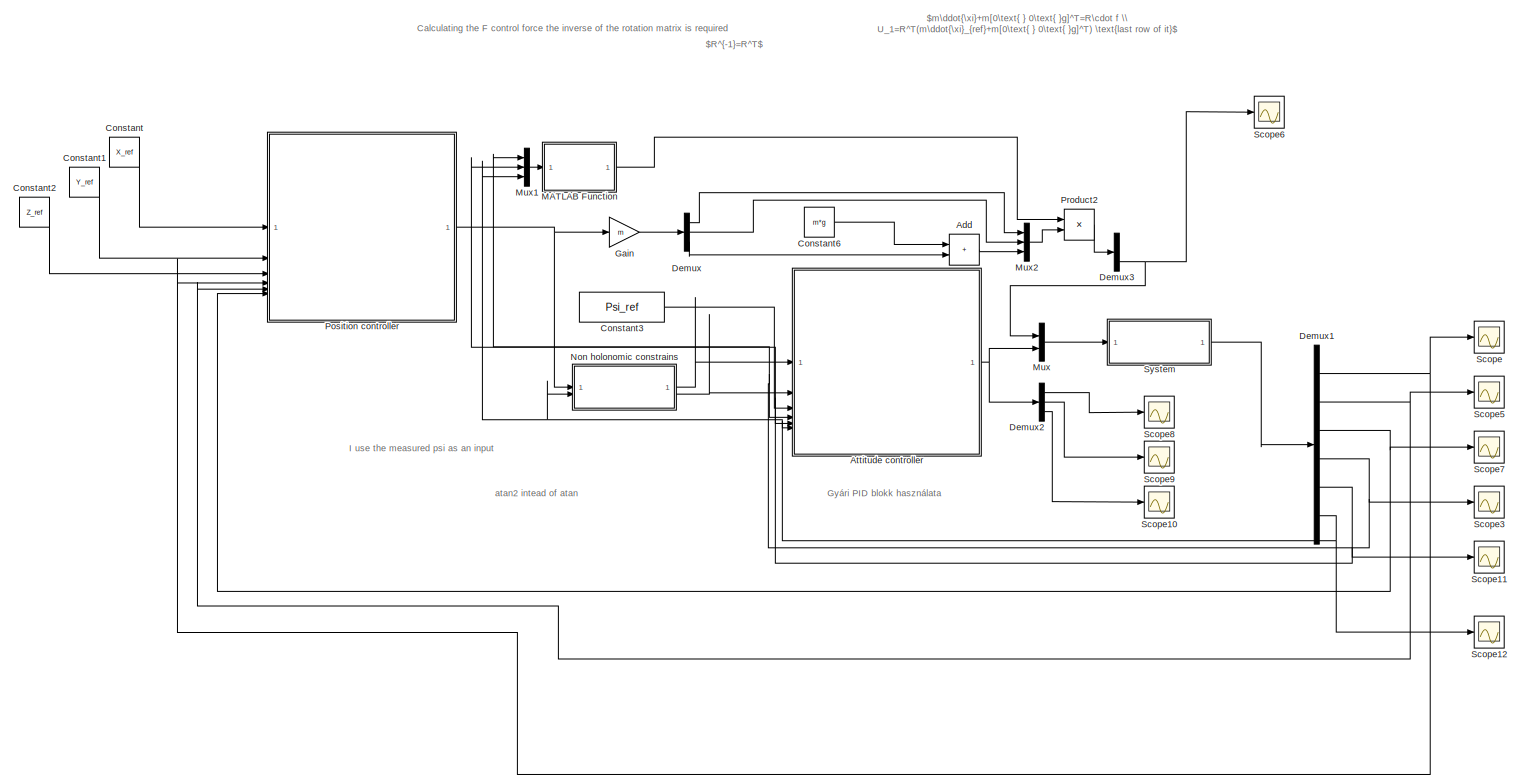
[diagram: root canvas - part 1/1, most of the canvas]
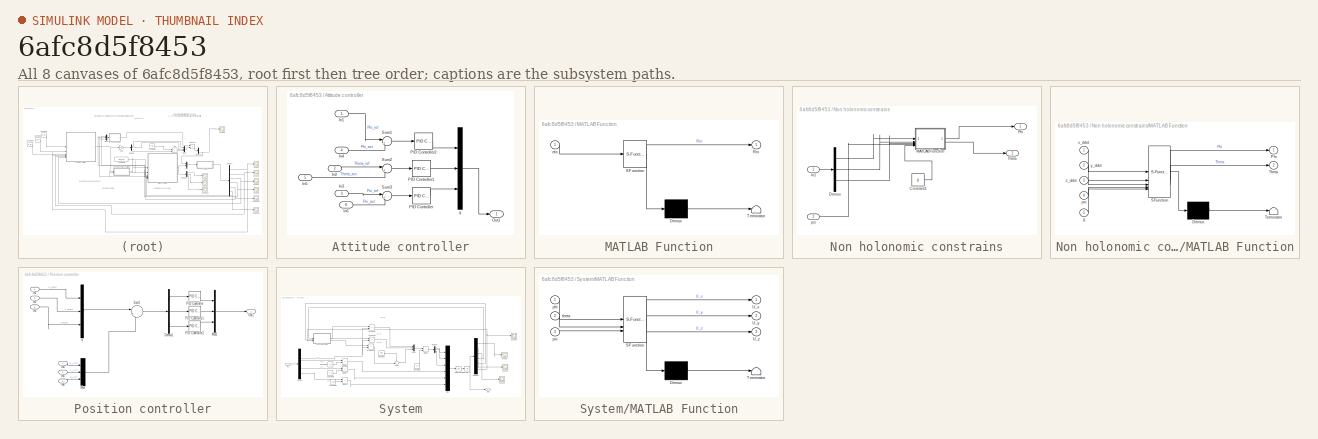
[diagram: thumbnail index - all 8 canvases of the model, root first then tree order]
MODEL slx_6afc8d5f8453
KIND model
CONFIG AbsTol = auto
CONFIG EnableMultiTasking = off
CONFIG FixedStep = auto
CONFIG MaxStep = auto
CONFIG MinStep = auto
CONFIG RelTol = 1e-3
CONFIG SampleTimeConstraint = Unconstrained
CONFIG SolverName = VariableStepAuto
CONFIG StartTime = 0.0
CONFIG StopTime = 50
BLOCK [Sum] Add
  IconShape = rectangular
BLOCK [SubSystem] Attitude controller
BLOCK [Inport] Attitude controller/In1
BLOCK [Inport] Attitude controller/In2
  Port = 2
BLOCK [Inport] Attitude controller/In3
  Port = 3
BLOCK [Inport] Attitude controller/In4
  Port = 4
BLOCK [Inport] Attitude controller/In5
  Port = 5
BLOCK [Inport] Attitude controller/In6
  Port = 6
BLOCK [Outport] Attitude controller/Out1
BLOCK [Reference] Attitude controller/PID Controller  REF=slpidlib/PID Controller
  SourceBlock = slpidlib/PID Controller
  SourceType = PID 1dof
BLOCK [Reference] Attitude controller/PID Controller1  REF=slpidlib/PID Controller
  SourceBlock = slpidlib/PID Controller
  SourceType = PID 1dof
BLOCK [Reference] Attitude controller/PID Controller2  REF=slpidlib/PID Controller
  SourceBlock = slpidlib/PID Controller
  SourceType = PID 1dof
BLOCK [Sum] Attitude controller/Sum1
  Inputs = |+-
BLOCK [Sum] Attitude controller/Sum2
  Inputs = |+-
BLOCK [Sum] Attitude controller/Sum3
  Inputs = |+-
BLOCK [Mux] Attitude controller/q
  DisplayOption = bar
  Inputs = 3
BLOCK [Constant] Constant
  Value = X_ref
BLOCK [Constant] Constant1
  Value = Y_ref
BLOCK [Constant] Constant2
  Value = Z_ref
BLOCK [Constant] Constant3
  Value = Psi_ref
BLOCK [Constant] Constant6
  Value = m*g
BLOCK [Demux] Demux
  Outputs = 3
BLOCK [Demux] Demux1
  Outputs = 6
BLOCK [Demux] Demux2
  Outputs = 3
BLOCK [Demux] Demux3
  Outputs = 3
BLOCK [Gain] Gain
  Gain = m
BLOCK [SubSystem] MATLAB Function
  ErrorFcn = Stateflow.Translate.translate
  PermitHierarchicalResolution = ExplicitOnly
  SFBlockType = MATLAB Function
  TreatAsAtomicUnit = on
BLOCK [Demux] MATLAB Function/ Demux 
  Outputs = 1
BLOCK [S-Function] MATLAB Function/ SFunction 
  EnableBusSupport = on
  FunctionName = sf_sfun
  PortCounts = [1 2]
  SFcnIsStateOwnerBlock = off
  SFunctionDeploymentMode = off
  Tag = Stateflow S-Function 4
BLOCK [Terminator] MATLAB Function/ Terminator 
BLOCK [Outport] MATLAB Function/Rm
BLOCK [Inport] MATLAB Function/eta
BLOCK [Mux] Mux
  DisplayOption = bar
  Inputs = 2
BLOCK [Mux] Mux1
  DisplayOption = bar
  Inputs = 3
BLOCK [Mux] Mux2
  DisplayOption = bar
  Inputs = 3
BLOCK [SubSystem] Non holonomic constrains
BLOCK [Constant] Non holonomic constrains/Constant1
  Value = g
BLOCK [Demux] Non holonomic constrains/Demux
  Outputs = 3
BLOCK [Inport] Non holonomic constrains/In1
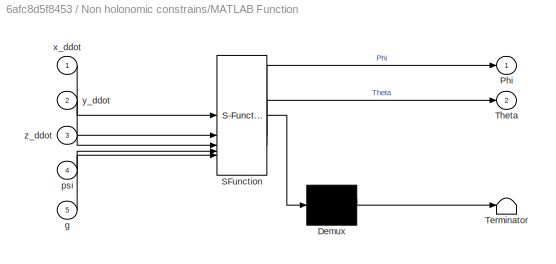
BLOCK [SubSystem] Non holonomic constrains/MATLAB Function
  ErrorFcn = Stateflow.Translate.translate
  PermitHierarchicalResolution = ExplicitOnly
  SFBlockType = MATLAB Function
  TreatAsAtomicUnit = on
BLOCK [Demux] Non holonomic constrains/MATLAB Function/ Demux 
  Outputs = 1
BLOCK [S-Function] Non holonomic constrains/MATLAB Function/ SFunction 
  EnableBusSupport = on
  FunctionName = sf_sfun
  PortCounts = [5 3]
  SFcnIsStateOwnerBlock = off
  SFunctionDeploymentMode = off
  Tag = Stateflow S-Function 1
BLOCK [Terminator] Non holonomic constrains/MATLAB Function/ Terminator 
BLOCK [Outport] Non holonomic constrains/MATLAB Function/Phi
BLOCK [Outport] Non holonomic constrains/MATLAB Function/Theta
  Port = 2
BLOCK [Inport] Non holonomic constrains/MATLAB Function/g
  Port = 5
BLOCK [Inport] Non holonomic constrains/MATLAB Function/psi
  Port = 4
BLOCK [Inport] Non holonomic constrains/MATLAB Function/x_ddot
BLOCK [Inport] Non holonomic constrains/MATLAB Function/y_ddot
  Port = 2
BLOCK [Inport] Non holonomic constrains/MATLAB Function/z_ddot
  Port = 3
BLOCK [Outport] Non holonomic constrains/Phi
BLOCK [Outport] Non holonomic constrains/Theta
  Port = 2
BLOCK [Inport] Non holonomic constrains/psi
  Port = 2
BLOCK [SubSystem] Position controller
BLOCK [Demux] Position controller/Demux1
  Outputs = 3
BLOCK [Inport] Position controller/In1
BLOCK [Inport] Position controller/In2
  Port = 2
BLOCK [Inport] Position controller/In3
  Port = 3
BLOCK [Inport] Position controller/In4
  Port = 4
BLOCK [Inport] Position controller/In5
  Port = 5
BLOCK [Inport] Position controller/In6
  Port = 6
BLOCK [Mux] Position controller/Mux
  DisplayOption = bar
  Inputs = 3
BLOCK [Mux] Position controller/Mux1
  DisplayOption = bar
  Inputs = 3
BLOCK [Outport] Position controller/Out1
BLOCK [Reference] Position controller/PID Controller  REF=slpidlib/PID Controller
  SourceBlock = slpidlib/PID Controller
  SourceType = PID 1dof
BLOCK [Reference] Position controller/PID Controller1  REF=slpidlib/PID Controller
  SourceBlock = slpidlib/PID Controller
  SourceType = PID 1dof
BLOCK [Reference] Position controller/PID Controller2  REF=slpidlib/PID Controller
  SourceBlock = slpidlib/PID Controller
  SourceType = PID 1dof
BLOCK [Sum] Position controller/Sum1
  Inputs = |+-
BLOCK [Mux] Position controller/q
  DisplayOption = bar
  Inputs = 3
BLOCK [Product] Product2
  Multiplication = Matrix(*)
BLOCK [Scope] Scope
  Floating = off
  NumInputPorts = 1
  ScopeSpecificationString = Simulink.scopes.TimeScopeBlockCfg('CurrentConfiguration', extmgr.ConfigurationSet(extmgr.Configuration('Core','General UI',true,'FigureColor',[0 0 0]),extmgr.Configuration('Core','Source UI',true),extmgr.Configuration('Sources','WiredSimulink',true),extmgr.Configuration('Visuals','Time Domain',true,'SerializedDisplays',{struct('MinYLimReal','-0.125','MaxYLimReal','1.125','YLabelReal','X [m]','MinY...<+1433ch>
BLOCK [Scope] Scope10
  Floating = off
  NumInputPorts = 1
  ScopeSpecificationString = Simulink.scopes.TimeScopeBlockCfg('CurrentConfiguration', extmgr.ConfigurationSet(extmgr.Configuration('Core','General UI',true),extmgr.Configuration('Core','Source UI',true),extmgr.Configuration('Sources','WiredSimulink',true,'DataLoggingVariableName','ScopeData13'),extmgr.Configuration('Visuals','Time Domain',true,'SerializedDisplays',{struct('MinYLimReal','-2.79749','MaxYLimReal','6.71037','YLa...<+1465ch>
BLOCK [Scope] Scope11
  Floating = off
  NumInputPorts = 1
  ScopeSpecificationString = Simulink.scopes.TimeScopeBlockCfg('CurrentConfiguration', extmgr.ConfigurationSet(extmgr.Configuration('Core','General UI',true),extmgr.Configuration('Core','Source UI',true),extmgr.Configuration('Sources','WiredSimulink',true,'DataLoggingVariableName','ScopeData1'),extmgr.Configuration('Visuals','Time Domain',true,'SerializedDisplays',{struct('MinYLimReal','-3.63749','MaxYLimReal','1.50051','YLab...<+1442ch>
BLOCK [Scope] Scope12
  Floating = off
  NumInputPorts = 1
  ScopeSpecificationString = Simulink.scopes.TimeScopeBlockCfg('CurrentConfiguration', extmgr.ConfigurationSet(extmgr.Configuration('Core','General UI',true),extmgr.Configuration('Core','Source UI',true),extmgr.Configuration('Sources','WiredSimulink',true,'DataLoggingVariableName','ScopeData2'),extmgr.Configuration('Visuals','Time Domain',true,'SerializedDisplays',{struct('MinYLimReal','-0.12341','MaxYLimReal','1.11073','YLab...<+1377ch>
BLOCK [Scope] Scope3
  Floating = off
  NumInputPorts = 1
  ScopeSpecificationString = Simulink.scopes.TimeScopeBlockCfg('CurrentConfiguration', extmgr.ConfigurationSet(extmgr.Configuration('Core','General UI',true),extmgr.Configuration('Core','Source UI',true),extmgr.Configuration('Sources','WiredSimulink',true,'DataLoggingVariableName','ScopeData1'),extmgr.Configuration('Visuals','Time Domain',true,'SerializedDisplays',{struct('MinYLimReal','-2.02473','MaxYLimReal','2.46756','YLab...<+1494ch>
BLOCK [Scope] Scope5
  Floating = off
  NumInputPorts = 1
  ScopeSpecificationString = Simulink.scopes.TimeScopeBlockCfg('CurrentConfiguration', extmgr.ConfigurationSet(extmgr.Configuration('Core','General UI',true),extmgr.Configuration('Core','Source UI',true),extmgr.Configuration('Sources','WiredSimulink',true,'DataLoggingVariableName','ScopeData8'),extmgr.Configuration('Visuals','Time Domain',true,'SerializedDisplays',{struct('MinYLimReal','-1.18697','MaxYLimReal','0.13189','YLab...<+1487ch>
BLOCK [Scope] Scope6
  Floating = off
  NumInputPorts = 1
  ScopeSpecificationString = Simulink.scopes.TimeScopeBlockCfg('CurrentConfiguration', extmgr.ConfigurationSet(extmgr.Configuration('Core','General UI',true),extmgr.Configuration('Core','Source UI',true),extmgr.Configuration('Sources','WiredSimulink',true,'DataLoggingVariableName','ScopeData9'),extmgr.Configuration('Visuals','Time Domain',true,'SerializedDisplays',{struct('MinYLimReal','9.894','MaxYLimReal','29.894','YLabelRe...<+1450ch>
BLOCK [Scope] Scope7
  Floating = off
  NumInputPorts = 1
  ScopeSpecificationString = Simulink.scopes.TimeScopeBlockCfg('CurrentConfiguration', extmgr.ConfigurationSet(extmgr.Configuration('Core','General UI',true),extmgr.Configuration('Core','Source UI',true),extmgr.Configuration('Sources','WiredSimulink',true,'DataLoggingVariableName','ScopeData10'),extmgr.Configuration('Visuals','Time Domain',true,'SerializedDisplays',{struct('MinYLimReal','-0.71452','MaxYLimReal','6.43071','YLa...<+1462ch>
BLOCK [Scope] Scope8
  Floating = off
  NumInputPorts = 1
  ScopeSpecificationString = Simulink.scopes.TimeScopeBlockCfg('CurrentConfiguration', extmgr.ConfigurationSet(extmgr.Configuration('Core','General UI',true),extmgr.Configuration('Core','Source UI',true),extmgr.Configuration('Sources','WiredSimulink',true,'DataLoggingVariableName','ScopeData11'),extmgr.Configuration('Visuals','Time Domain',true,'SerializedDisplays',{struct('MinYLimReal','-0.00112','MaxYLimReal','0.00121','YLa...<+1465ch>
BLOCK [Scope] Scope9
  Floating = off
  NumInputPorts = 1
  ScopeSpecificationString = Simulink.scopes.TimeScopeBlockCfg('CurrentConfiguration', extmgr.ConfigurationSet(extmgr.Configuration('Core','General UI',true),extmgr.Configuration('Core','Source UI',true),extmgr.Configuration('Sources','WiredSimulink',true,'DataLoggingVariableName','ScopeData12'),extmgr.Configuration('Visuals','Time Domain',true,'SerializedDisplays',{struct('MinYLimReal','-2.3403','MaxYLimReal','2.14695','YLab...<+1461ch>
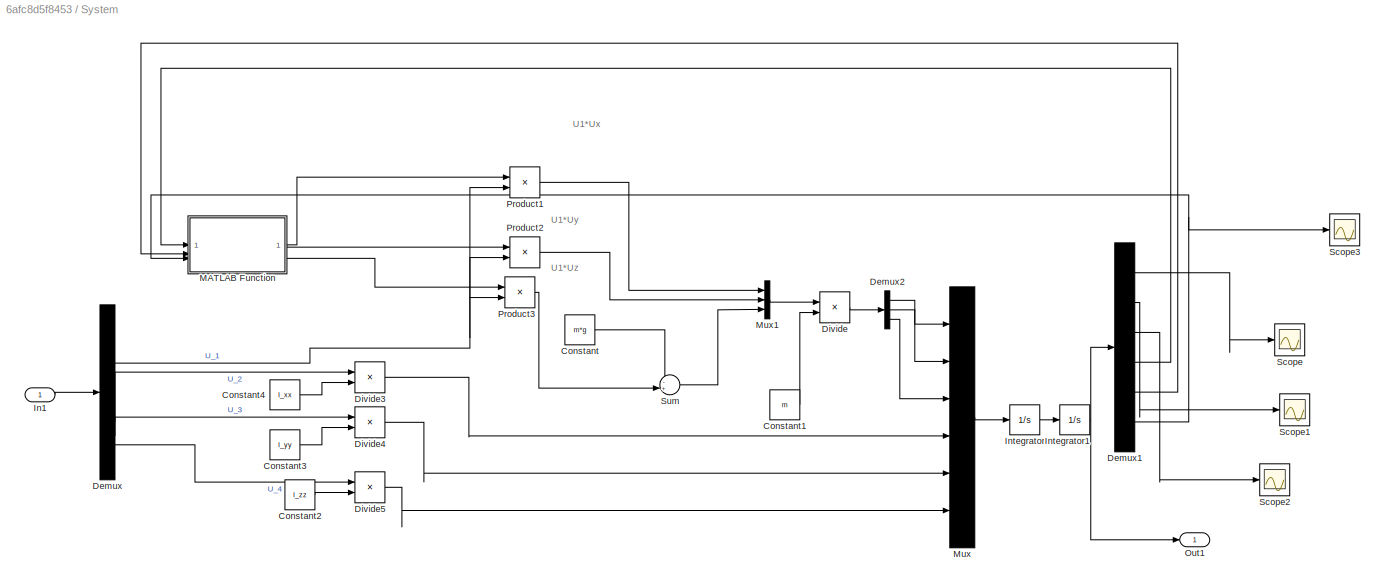
BLOCK [SubSystem] System
BLOCK [Constant] System/Constant
  Value = m*g
BLOCK [Constant] System/Constant1
  Value = m
BLOCK [Constant] System/Constant2
  Value = I_zz
BLOCK [Constant] System/Constant3
  Value = I_yy
BLOCK [Constant] System/Constant4
  Value = I_xx
BLOCK [Demux] System/Demux
BLOCK [Demux] System/Demux1
  Outputs = 6
BLOCK [Demux] System/Demux2
  Outputs = 3
BLOCK [Product] System/Divide
  Inputs = */
BLOCK [Product] System/Divide3
  Inputs = */
BLOCK [Product] System/Divide4
  Inputs = */
BLOCK [Product] System/Divide5
  Inputs = */
BLOCK [Inport] System/In1
BLOCK [Integrator] System/Integrator
BLOCK [Integrator] System/Integrator1
BLOCK [SubSystem] System/MATLAB Function
  ErrorFcn = Stateflow.Translate.translate
  PermitHierarchicalResolution = ExplicitOnly
  SFBlockType = MATLAB Function
  TreatAsAtomicUnit = on
BLOCK [Demux] System/MATLAB Function/ Demux 
  Outputs = 1
BLOCK [S-Function] System/MATLAB Function/ SFunction 
  EnableBusSupport = on
  FunctionName = sf_sfun
  PortCounts = [3 4]
  SFcnIsStateOwnerBlock = off
  SFunctionDeploymentMode = off
  Tag = Stateflow S-Function 2
BLOCK [Terminator] System/MATLAB Function/ Terminator 
BLOCK [Outport] System/MATLAB Function/U_x
BLOCK [Outport] System/MATLAB Function/U_y
  Port = 2
BLOCK [Outport] System/MATLAB Function/U_z
  Port = 3
BLOCK [Inport] System/MATLAB Function/phi
BLOCK [Inport] System/MATLAB Function/psi
  Port = 3
BLOCK [Inport] System/MATLAB Function/theta
  Port = 2
BLOCK [Mux] System/Mux
  DisplayOption = bar
  Inputs = 6
BLOCK [Mux] System/Mux1
  DisplayOption = bar
  Inputs = 3
BLOCK [Outport] System/Out1
BLOCK [Product] System/Product1
BLOCK [Product] System/Product2
BLOCK [Product] System/Product3
BLOCK [Scope] System/Scope
  Floating = off
  NumInputPorts = 1
  ScopeSpecificationString = Simulink.scopes.TimeScopeBlockCfg('CurrentConfiguration', extmgr.ConfigurationSet(extmgr.Configuration('Core','General UI',true),extmgr.Configuration('Core','Source UI',true),extmgr.Configuration('Sources','WiredSimulink',true,'DataLoggingVariableName','ScopeData14'),extmgr.Configuration('Visuals','Time Domain',true,'SerializedDisplays',{struct('MinYLimReal','-30088972.53627','MaxYLimReal','187776...<+1468ch>
BLOCK [Scope] System/Scope1
  Floating = off
  NumInputPorts = 1
  ScopeSpecificationString = Simulink.scopes.TimeScopeBlockCfg('CurrentConfiguration', extmgr.ConfigurationSet(extmgr.Configuration('Core','General UI',true),extmgr.Configuration('Core','Source UI',true),extmgr.Configuration('Sources','WiredSimulink',true,'DataLoggingVariableName','ScopeData15'),extmgr.Configuration('Visuals','Time Domain',true,'SerializedDisplays',{struct('MinYLimReal','-223164972.78221','MaxYLimReal','20084...<+1434ch>
BLOCK [Scope] System/Scope2
  Floating = off
  NumInputPorts = 1
  ScopeSpecificationString = Simulink.scopes.TimeScopeBlockCfg('CurrentConfiguration', extmgr.ConfigurationSet(extmgr.Configuration('Core','General UI',true),extmgr.Configuration('Core','Source UI',true),extmgr.Configuration('Sources','WiredSimulink',true,'DataLoggingVariableName','ScopeData16'),extmgr.Configuration('Visuals','Time Domain',true,'SerializedDisplays',{struct('MinYLimReal','-0.37859','MaxYLimReal','3.40732','YLa...<+1368ch>
BLOCK [Scope] System/Scope3
  Floating = off
  NumInputPorts = 1
  ScopeSpecificationString = Simulink.scopes.TimeScopeBlockCfg('CurrentConfiguration', extmgr.ConfigurationSet(extmgr.Configuration('Core','General UI',true),extmgr.Configuration('Core','Source UI',true),extmgr.Configuration('Sources','WiredSimulink',true,'DataLoggingVariableName','ScopeData6'),extmgr.Configuration('Visuals','Time Domain',true,'SerializedDisplays',{struct('MinYLimReal','-1.00000','MaxYLimReal','1.00000','YLab...<+1413ch>
BLOCK [Sum] System/Sum
  Inputs = -+|
ANNOTATION (root): Gyári PID blokk használata
ANNOTATION (root): $R^{-1}=R^T$
ANNOTATION (root): $m\ddot{\xi}+m[0\text{ } 0\text{ }g]^T=R\cdot f \\ U_1=R^T(m\ddot{\xi}_{ref}+m[0\text{ } 0\text{ }g]^T) \text{last row of it}$
ANNOTATION (root): Calculating the F control force the inverse of the rotation matrix is required
ANNOTATION (root): I use the measured psi as an input
ANNOTATION (root): atan2 intead of atan
ANNOTATION System: U1*Ux
ANNOTATION System: U1*Uy
ANNOTATION System: U1*Uz
LINE Add:1 -> Mux2:3
LINE Attitude controller/In1:1 -> Attitude controller/Sum1:1
LINE Attitude controller/In2:1 -> Attitude controller/Sum2:1
LINE Attitude controller/In3:1 -> Attitude controller/Sum3:1
LINE Attitude controller/In4:1 -> Attitude controller/Sum1:2
LINE Attitude controller/In5:1 -> Attitude controller/Sum2:2
LINE Attitude controller/In6:1 -> Attitude controller/Sum3:2
LINE Attitude controller/PID Controller1:1 -> Attitude controller/q:2
LINE Attitude controller/PID Controller2:1 -> Attitude controller/q:1
LINE Attitude controller/PID Controller:1 -> Attitude controller/q:3
LINE Attitude controller/Sum1:1 -> Attitude controller/PID Controller2:1
LINE Attitude controller/Sum2:1 -> Attitude controller/PID Controller1:1
LINE Attitude controller/Sum3:1 -> Attitude controller/PID Controller:1
LINE Attitude controller/q:1 -> Attitude controller/Out1:1
NET Attitude controller:1 -> Demux2:1, Mux:2
LINE Constant1:1 -> Position controller:2
LINE Constant2:1 -> Position controller:3
LINE Constant3:1 -> Attitude controller:3
LINE Constant6:1 -> Add:1
LINE Constant:1 -> Position controller:1
NET Demux1:1 -> Position controller:4, Scope:1
NET Demux1:2 -> Position controller:5, Scope5:1
NET Demux1:3 -> Position controller:6, Scope7:1
NET Demux1:4 -> Attitude controller:4, Mux1:1, Scope3:1
NET Demux1:5 -> Attitude controller:5, Mux1:2, Scope11:1
NET Demux1:6 -> Attitude controller:6, Mux1:3, Non holonomic constrains:2, Scope12:1
LINE Demux2:1 -> Scope8:1
LINE Demux2:2 -> Scope9:1
LINE Demux2:3 -> Scope10:1
NET Demux3:3 -> Mux:1, Scope6:1
LINE Demux:1 -> Mux2:1
LINE Demux:2 -> Mux2:2
LINE Demux:3 -> Add:2
LINE Gain:1 -> Demux:1
LINE MATLAB Function:1 -> Product2:1
LINE Mux1:1 -> MATLAB Function:1
LINE Mux2:1 -> Product2:2
LINE Mux:1 -> System:1
LINE Non holonomic constrains/Constant1:1 -> Non holonomic constrains/MATLAB Function:5
LINE Non holonomic constrains/Demux:1 -> Non holonomic constrains/MATLAB Function:1
LINE Non holonomic constrains/Demux:2 -> Non holonomic constrains/MATLAB Function:2
LINE Non holonomic constrains/Demux:3 -> Non holonomic constrains/MATLAB Function:3
LINE Non holonomic constrains/In1:1 -> Non holonomic constrains/Demux:1
LINE Non holonomic constrains/MATLAB Function:1 -> Non holonomic constrains/Phi:1
LINE Non holonomic constrains/MATLAB Function:2 -> Non holonomic constrains/Theta:1
LINE Non holonomic constrains/psi:1 -> Non holonomic constrains/MATLAB Function:4
LINE Non holonomic constrains:1 -> Attitude controller:1
LINE Non holonomic constrains:2 -> Attitude controller:2
LINE Position controller/Demux1:1 -> Position controller/PID Controller:1
LINE Position controller/Demux1:2 -> Position controller/PID Controller1:1
LINE Position controller/Demux1:3 -> Position controller/PID Controller2:1
LINE Position controller/In1:1 -> Position controller/q:1
LINE Position controller/In2:1 -> Position controller/q:2
LINE Position controller/In3:1 -> Position controller/q:3
LINE Position controller/In4:1 -> Position controller/Mux:1
LINE Position controller/In5:1 -> Position controller/Mux:2
LINE Position controller/In6:1 -> Position controller/Mux:3
LINE Position controller/Mux1:1 -> Position controller/Out1:1
LINE Position controller/Mux:1 -> Position controller/Sum1:2
LINE Position controller/PID Controller1:1 -> Position controller/Mux1:2
LINE Position controller/PID Controller2:1 -> Position controller/Mux1:3
LINE Position controller/PID Controller:1 -> Position controller/Mux1:1
LINE Position controller/Sum1:1 -> Position controller/Demux1:1
LINE Position controller/q:1 -> Position controller/Sum1:1
NET Position controller:1 -> Gain:1, Non holonomic constrains:1
LINE Product2:1 -> Demux3:1
LINE System/Constant1:1 -> System/Divide:2
LINE System/Constant2:1 -> System/Divide5:2
LINE System/Constant3:1 -> System/Divide4:2
LINE System/Constant4:1 -> System/Divide3:2
LINE System/Constant:1 -> System/Sum:1
LINE System/Demux1:1 -> System/Scope:1
LINE System/Demux1:2 -> System/Scope1:1
LINE System/Demux1:3 -> System/Scope2:1
LINE System/Demux1:4 -> System/MATLAB Function:1
LINE System/Demux1:5 -> System/MATLAB Function:2
NET System/Demux1:6 -> System/MATLAB Function:3, System/Scope3:1
LINE System/Demux2:1 -> System/Mux:1
LINE System/Demux2:2 -> System/Mux:2
LINE System/Demux2:3 -> System/Mux:3
NET System/Demux:1 -> System/Product1:2, System/Product2:2, System/Product3:2
LINE System/Demux:2 -> System/Divide3:1
LINE System/Demux:3 -> System/Divide4:1
LINE System/Demux:4 -> System/Divide5:1
LINE System/Divide3:1 -> System/Mux:4
LINE System/Divide4:1 -> System/Mux:5
LINE System/Divide5:1 -> System/Mux:6
LINE System/Divide:1 -> System/Demux2:1
LINE System/In1:1 -> System/Demux:1
NET System/Integrator1:1 -> System/Demux1:1, System/Out1:1
LINE System/Integrator:1 -> System/Integrator1:1
LINE System/MATLAB Function:1 -> System/Product1:1
LINE System/MATLAB Function:2 -> System/Product2:1
LINE System/MATLAB Function:3 -> System/Product3:1
LINE System/Mux1:1 -> System/Divide:1
LINE System/Mux:1 -> System/Integrator:1
LINE System/Product1:1 -> System/Mux1:1
LINE System/Product2:1 -> System/Mux1:2
LINE System/Product3:1 -> System/Sum:2
LINE System/Sum:1 -> System/Mux1:3
LINE System:1 -> Demux1:1
note: NET lines group one-source signal fan-out (src -> all destinations, sorted); 1:1 wires keep LINE
CHART Non holonomic constrains/MATLAB Function states=1 transitions=1
  STATE_LABEL 'eML_blk_kernel()'
  STATE_LABEL 'SCRIPT:\nfunction [Phi, Theta] = fcn(x_ddot,y_ddot,z_ddot,psi,g)\n\n\nPhi = asin((x_ddot*sin(psi)-y_ddot*cos(psi))/(sqrt(x_ddot^2+y_ddot^2+(z_ddot+g)^2)));\nTheta =atan2((x_ddot*cos(psi )+y_ddot*sin(psi)),(z_ddot+g));\n'
CHART System/MATLAB Function states=1 transitions=1
  STATE_LABEL 'eML_blk_kernel()'
  STATE_LABEL 'SCRIPT:\nfunction [U_x,U_y,U_z] = fcn(phi,theta,psi)\n\n\nU_x = cos(phi)*sin(theta)*cos(psi)+sin(phi)*sin(psi);\nU_y = cos(phi)*sin(theta)*sin(psi)-sin(phi)*cos(psi);\nU_z =cos(phi)*cos(theta); \n'
CHART MATLAB Function states=1 transitions=1
  STATE_LABEL 'eML_blk_kernel()'
  STATE_LABEL "SCRIPT:\nfunction Rm = R(eta)\n\nphi = eta(1);\ntheta = eta(2);\npsi = eta(3);\n\nRx = [1 0 0; 0 cos(phi) -sin(phi); 0 sin(phi) cos(phi)];\nRy = [cos(theta) 0 sin(theta); 0 1 0; -sin(theta) 0 cos(theta)];\nRz = [cos(psi) -sin(psi) 0; sin(psi) cos(psi) 0; 0 0 1];\nRm = (Rz*Ry*Rx)';\n\n"
CHART  states=0 transitions=0
CHART  states=0 transitions=0
CHART  states=0 transitions=0
